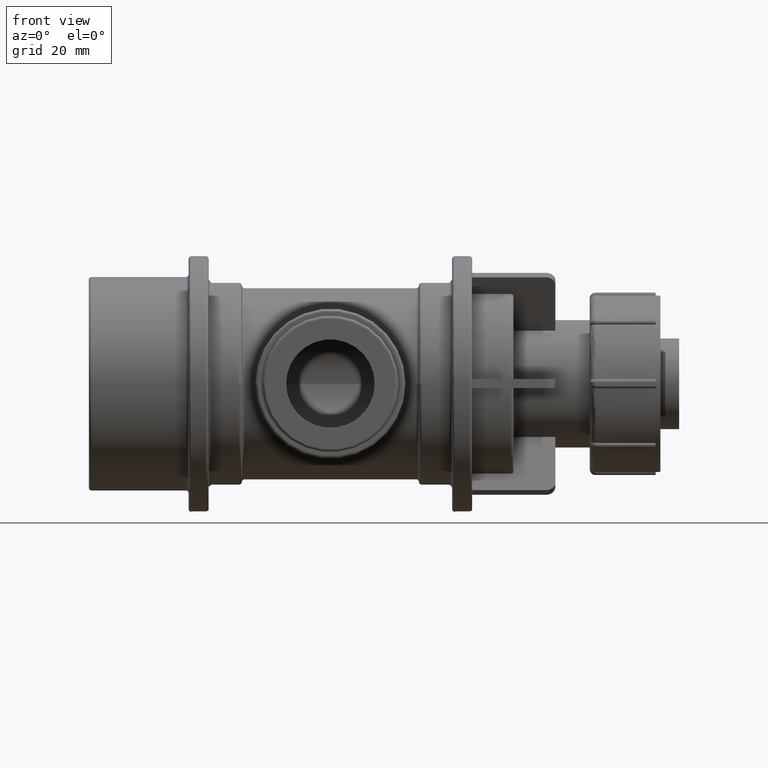
[diagram: clean part render]
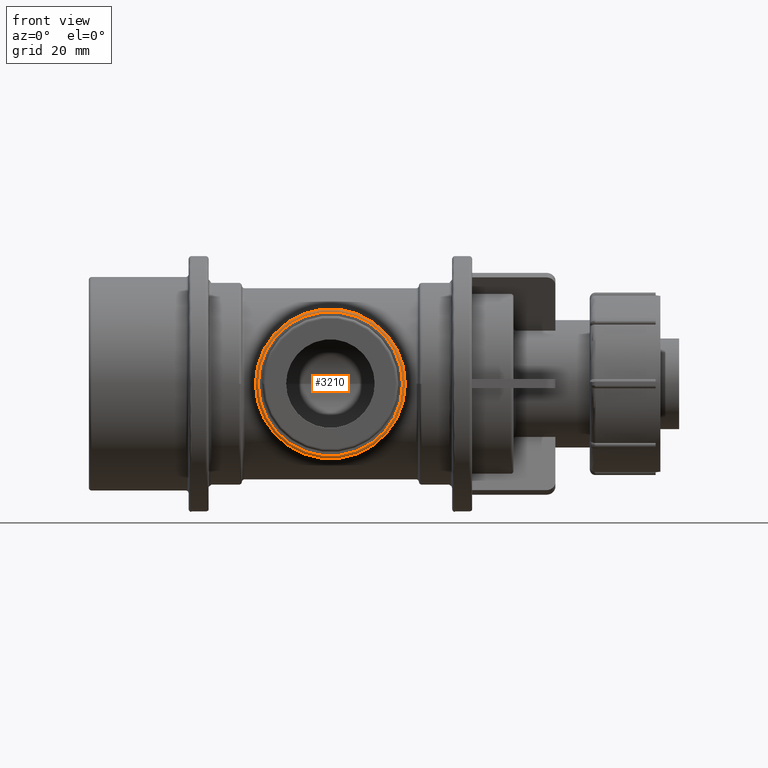
[diagram: same view with one face highlighted and labeled with its STEP entity id]
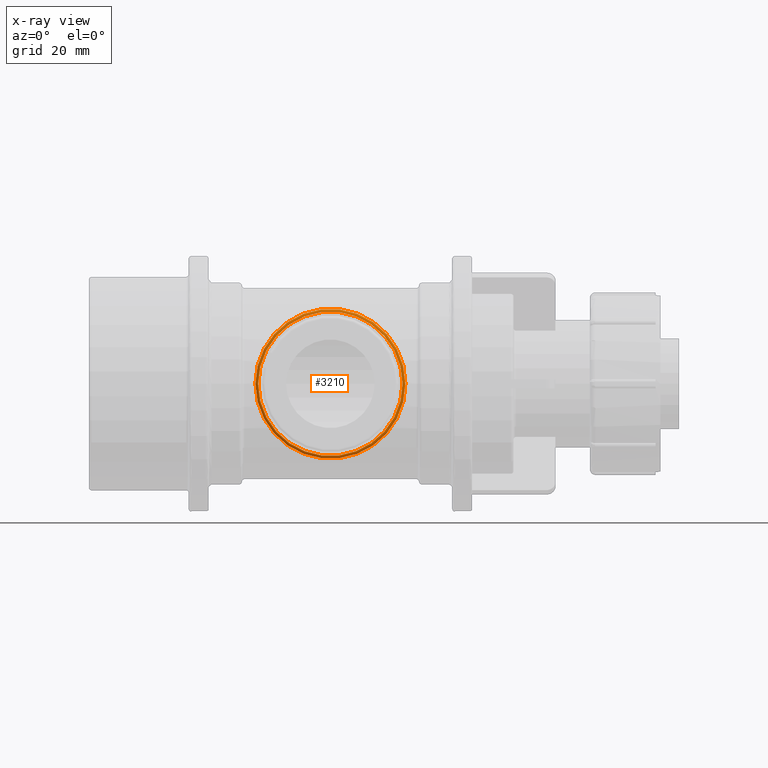
[diagram: x-ray of the same camera — body ghosted, the highlighted face saturated]
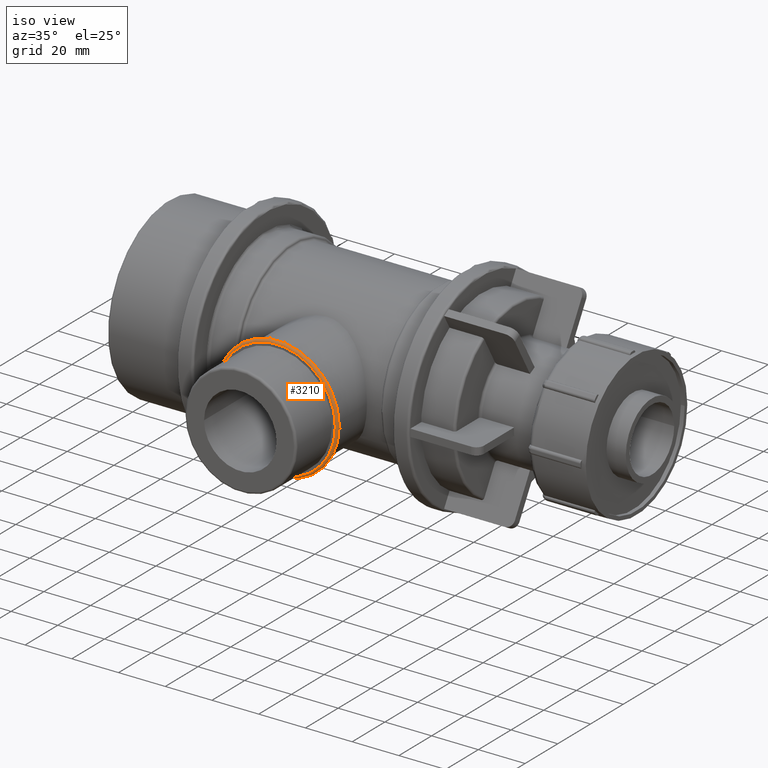
[diagram: same view with one face highlighted and labeled with its STEP entity id]
A machine part, front view. The second image highlights one B-rep face of the part: STEP entity #3210.
The next image is the same camera in x-ray: the body ghosted, the highlighted face saturated — about 0% of this face is hidden behind the body in this view.
A second angle (iso view) of the same face is appended — the face is thin or edge-on in the first view.
In plain terms, the highlighted toroidal blend (fillet) surface has major radius 25.2917 mm and minor (blend) radius 1 mm.
Its self-contained STEP definition (entity closure, byte-faithful):
#706=CIRCLE('',#3593,26.29165);
#708=CIRCLE('',#3597,25.29165);
#736=TOROIDAL_SURFACE('',#3596,25.29165,1.);
#791=FACE_BOUND('',#1269,.T.);
#1003=FACE_OUTER_BOUND('',#1268,.T.);
#1268=EDGE_LOOP('',(#2922));
#1269=EDGE_LOOP('',(#2923));
#1621=VERTEX_POINT('',#6257);
#1623=VERTEX_POINT('',#6263);
#2057=EDGE_CURVE('',#1621,#1621,#706,.T.);
#2059=EDGE_CURVE('',#1623,#1623,#708,.T.);
#2922=ORIENTED_EDGE('',*,*,#2059,.T.);
#2923=ORIENTED_EDGE('',*,*,#2057,.T.);
#3210=ADVANCED_FACE('',(#1003,#791),#736,.T.);
#3593=AXIS2_PLACEMENT_3D('',#6258,#4526,#4527);
#3596=AXIS2_PLACEMENT_3D('',#6262,#4532,#4533);
#3597=AXIS2_PLACEMENT_3D('',#6264,#4534,#4535);
#4526=DIRECTION('center_axis',(1.22464679914735E-16,-1.,0.));
#4527=DIRECTION('ref_axis',(1.,1.21403228621913E-16,0.));
#4532=DIRECTION('center_axis',(-1.22464679914735E-16,1.,0.));
#4533=DIRECTION('ref_axis',(0.,0.,1.));
#4534=DIRECTION('center_axis',(-1.22464679914735E-16,1.,0.));
#4535=DIRECTION('ref_axis',(1.,1.22464679914735E-16,0.));
#6257=CARTESIAN_POINT('',(-26.29165,-54.,-3.21979850168025E-15));
#6258=CARTESIAN_POINT('Origin',(6.61309271539571E-15,-54.,0.));
#6262=CARTESIAN_POINT('Origin',(6.61309271539571E-15,-54.,0.));
#6263=CARTESIAN_POINT('',(-25.29165,-55.,3.09733382176551E-15));
#6264=CARTESIAN_POINT('Origin',(6.73555739531044E-15,-55.,0.));